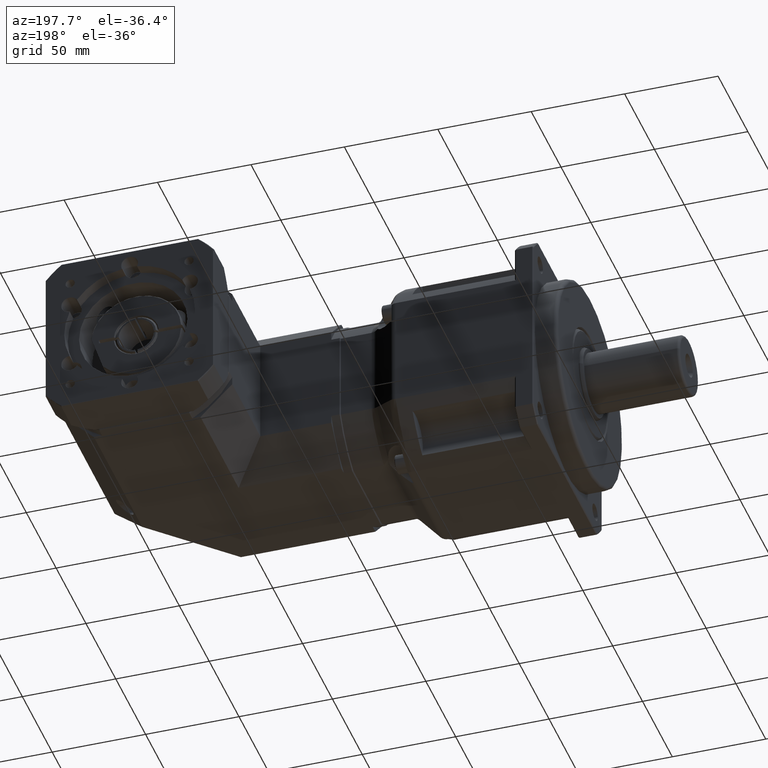
[diagram: clean part render]
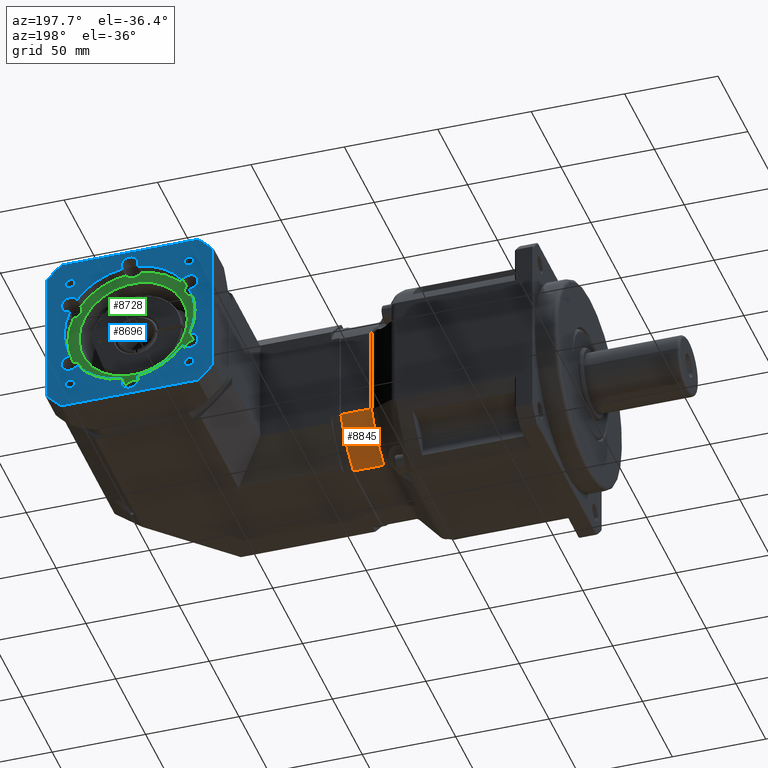
[diagram: same view with three faces highlighted in distinct colors, each labeled with its STEP entity id]
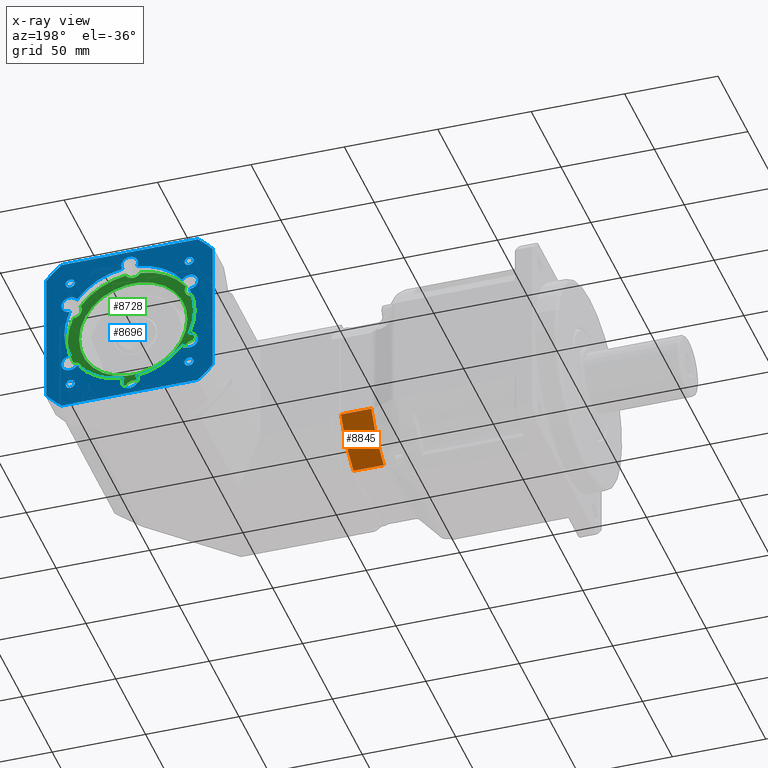
[diagram: x-ray of the same camera — body ghosted, the three highlighted faces saturated]
A machine part, auxiliary view with three faces highlighted in distinct colors.
The next image is the same camera in x-ray (body ghosted, the three faces saturated) — at least one of them is partly hidden behind the body in this view.
Their STEP definitions:

[orange] entity #8845 — the highlighted cylindrical surface (partial cylindrical patch) has radius 51 mm, axis along (-1, -0, 0).
#146=B_SPLINE_CURVE_WITH_KNOTS('',3,(#15030,#15031,#15032,#15033,#15034),
 .UNSPECIFIED.,.F.,.F.,(4,1,4),(0.00398451427106212,1.89532849861247,3.31286002576613),
 .UNSPECIFIED.);
#513=LINE('',#14957,#976);
#519=LINE('',#15024,#982);
#976=VECTOR('',#11473,16.2613812416727);
#982=VECTOR('',#11487,16.2613812416727);
#2119=CYLINDRICAL_SURFACE('',#9712,51.);
#2487=FACE_OUTER_BOUND('',#3211,.T.);
#3211=EDGE_LOOP('',(#7164,#7165,#7166,#7167));
#3839=CIRCLE('',#9713,51.);
#4455=VERTEX_POINT('',#14951);
#4456=VERTEX_POINT('',#14956);
#4463=VERTEX_POINT('',#15021);
#4464=VERTEX_POINT('',#15023);
#5437=EDGE_CURVE('',#4455,#4456,#513,.T.);
#5449=EDGE_CURVE('',#4463,#4464,#519,.T.);
#5451=EDGE_CURVE('',#4464,#4455,#146,.T.);
#5452=EDGE_CURVE('',#4456,#4463,#3839,.T.);
#7164=ORIENTED_EDGE('',*,*,#5451,.F.);
#7165=ORIENTED_EDGE('',*,*,#5449,.F.);
#7166=ORIENTED_EDGE('',*,*,#5452,.F.);
#7167=ORIENTED_EDGE('',*,*,#5437,.F.);
#8845=ADVANCED_FACE('',(#2487),#2119,.T.);
#9712=AXIS2_PLACEMENT_3D('',#15029,#11488,#11489);
#9713=AXIS2_PLACEMENT_3D('',#15035,#11490,#11491);
#11473=DIRECTION('',(1.,7.30465753510197E-16,-7.28688222839997E-17));
#11487=DIRECTION('',(-1.,-7.30465753510197E-16,7.28688222839997E-17));
#11488=DIRECTION('center_axis',(-1.,-7.30465753510197E-16,7.28688222839997E-17));
#11489=DIRECTION('ref_axis',(7.28688222840003E-17,-8.02309607639273E-16,
1.));
#11490=DIRECTION('center_axis',(1.,7.30465753510197E-16,-7.28688222839997E-17));
#11491=DIRECTION('ref_axis',(7.28688222840003E-17,-8.02309607639273E-16,
1.));
#14951=CARTESIAN_POINT('',(-28.5759447273113,60.0608220023816,33.375721489125));
#14956=CARTESIAN_POINT('',(-12.3145634856386,60.0608220023816,33.375721489125));
#14957=CARTESIAN_POINT('',(-12.3145634856386,60.0608220023816,33.375721489125));
#15021=CARTESIAN_POINT('',(-12.3145634856386,81.0608220023815,54.375721489125));
#15023=CARTESIAN_POINT('',(-28.5759447273113,81.0608220023815,54.375721489125));
#15024=CARTESIAN_POINT('',(-12.3145634856386,81.0608220023815,54.375721489125));
#15029=CARTESIAN_POINT('Origin',(-12.3145634856386,36.0608220023815,78.375721489125));
#15030=CARTESIAN_POINT('Ctrl Pts',(-28.5759447273113,81.0608218959225,54.3757215634909));
#15031=CARTESIAN_POINT('Ctrl Pts',(-28.5758925062007,78.3588679438631,49.3096444238348));
#15032=CARTESIAN_POINT('Ctrl Pts',(-28.5758533674329,72.1211196478526,41.2542845228089));
#15033=CARTESIAN_POINT('Ctrl Pts',(-28.5759055882676,63.8577944991885,35.4007868925973));
#15034=CARTESIAN_POINT('Ctrl Pts',(-28.5759447273113,60.0608219840682,33.3757215355544));
#15035=CARTESIAN_POINT('Origin',(-12.3145634856386,36.0608220023815,78.375721489125));

[blue] entity #8696 — the highlighted planar face has unit normal (0, 1, -0).
#398=LINE('',#13290,#861);
#400=LINE('',#13343,#863);
#402=LINE('',#13381,#865);
#405=LINE('',#13421,#868);
#861=VECTOR('',#10746,72.8285658241325);
#863=VECTOR('',#10756,72.8285658241325);
#865=VECTOR('',#10766,72.8285658241325);
#868=VECTOR('',#10777,72.8285658241325);
#1857=FACE_BOUND('',#3001,.T.);
#1858=FACE_BOUND('',#3002,.T.);
#1859=FACE_BOUND('',#3003,.T.);
#1860=FACE_BOUND('',#3004,.T.);
#1861=FACE_BOUND('',#3005,.T.);
#2338=FACE_OUTER_BOUND('',#3000,.T.);
#3000=EDGE_LOOP('',(#6454,#6455,#6456,#6457,#6458,#6459,#6460,#6461));
#3001=EDGE_LOOP('',(#6462,#6463,#6464,#6465,#6466,#6467,#6468,#6469,#6470,
#6471,#6472,#6473));
#3002=EDGE_LOOP('',(#6474));
#3003=EDGE_LOOP('',(#6475));
#3004=EDGE_LOOP('',(#6476));
#3005=EDGE_LOOP('',(#6477));
#3691=CIRCLE('',#9403,57.5);
#3693=CIRCLE('',#9407,57.5);
#3696=CIRCLE('',#9412,57.5);
#3698=CIRCLE('',#9416,57.5);
#3705=CIRCLE('',#9428,4.5);
#3706=CIRCLE('',#9429,35.);
#3707=CIRCLE('',#9430,4.5);
#3708=CIRCLE('',#9431,35.);
#3709=CIRCLE('',#9432,4.5);
#3710=CIRCLE('',#9433,35.);
#3711=CIRCLE('',#9434,4.5);
#3712=CIRCLE('',#9435,35.);
#3713=CIRCLE('',#9436,4.5);
#3714=CIRCLE('',#9437,35.);
#3715=CIRCLE('',#9438,4.5);
#3716=CIRCLE('',#9439,35.);
#3717=CIRCLE('',#9440,2.4585);
#3718=CIRCLE('',#9441,2.4585);
#3719=CIRCLE('',#9442,2.4585);
#3720=CIRCLE('',#9443,2.4585);
#4194=VERTEX_POINT('',#13288);
#4195=VERTEX_POINT('',#13289);
#4198=VERTEX_POINT('',#13323);
#4200=VERTEX_POINT('',#13342);
#4202=VERTEX_POINT('',#13361);
#4204=VERTEX_POINT('',#13380);
#4207=VERTEX_POINT('',#13401);
#4209=VERTEX_POINT('',#13420);
#4219=VERTEX_POINT('',#13467);
#4220=VERTEX_POINT('',#13468);
#4221=VERTEX_POINT('',#13470);
#4222=VERTEX_POINT('',#13472);
#4223=VERTEX_POINT('',#13474);
#4224=VERTEX_POINT('',#13476);
#4225=VERTEX_POINT('',#13478);
#4226=VERTEX_POINT('',#13480);
#4227=VERTEX_POINT('',#13482);
#4228=VERTEX_POINT('',#13484);
#4229=VERTEX_POINT('',#13486);
#4230=VERTEX_POINT('',#13488);
#4231=VERTEX_POINT('',#13491);
#4232=VERTEX_POINT('',#13493);
#4233=VERTEX_POINT('',#13495);
#4234=VERTEX_POINT('',#13497);
#5054=EDGE_CURVE('',#4194,#4195,#398,.T.);
#5058=EDGE_CURVE('',#4195,#4198,#3691,.T.);
#5061=EDGE_CURVE('',#4198,#4200,#400,.T.);
#5064=EDGE_CURVE('',#4200,#4202,#3693,.T.);
#5067=EDGE_CURVE('',#4202,#4204,#402,.T.);
#5071=EDGE_CURVE('',#4204,#4207,#3696,.T.);
#5074=EDGE_CURVE('',#4207,#4209,#405,.T.);
#5077=EDGE_CURVE('',#4209,#4194,#3698,.T.);
#5092=EDGE_CURVE('',#4219,#4220,#3705,.T.);
#5093=EDGE_CURVE('',#4220,#4221,#3706,.T.);
#5094=EDGE_CURVE('',#4221,#4222,#3707,.T.);
#5095=EDGE_CURVE('',#4222,#4223,#3708,.T.);
#5096=EDGE_CURVE('',#4223,#4224,#3709,.T.);
#5097=EDGE_CURVE('',#4224,#4225,#3710,.T.);
#5098=EDGE_CURVE('',#4225,#4226,#3711,.T.);
#5099=EDGE_CURVE('',#4226,#4227,#3712,.T.);
#5100=EDGE_CURVE('',#4227,#4228,#3713,.T.);
#5101=EDGE_CURVE('',#4228,#4229,#3714,.T.);
#5102=EDGE_CURVE('',#4229,#4230,#3715,.T.);
#5103=EDGE_CURVE('',#4230,#4219,#3716,.T.);
#5104=EDGE_CURVE('',#4231,#4231,#3717,.T.);
#5105=EDGE_CURVE('',#4232,#4232,#3718,.T.);
#5106=EDGE_CURVE('',#4233,#4233,#3719,.T.);
#5107=EDGE_CURVE('',#4234,#4234,#3720,.T.);
#6454=ORIENTED_EDGE('',*,*,#5054,.F.);
#6455=ORIENTED_EDGE('',*,*,#5077,.F.);
#6456=ORIENTED_EDGE('',*,*,#5074,.F.);
#6457=ORIENTED_EDGE('',*,*,#5071,.F.);
#6458=ORIENTED_EDGE('',*,*,#5067,.F.);
#6459=ORIENTED_EDGE('',*,*,#5064,.F.);
#6460=ORIENTED_EDGE('',*,*,#5061,.F.);
#6461=ORIENTED_EDGE('',*,*,#5058,.F.);
#6462=ORIENTED_EDGE('',*,*,#5092,.T.);
#6463=ORIENTED_EDGE('',*,*,#5093,.T.);
#6464=ORIENTED_EDGE('',*,*,#5094,.T.);
#6465=ORIENTED_EDGE('',*,*,#5095,.T.);
#6466=ORIENTED_EDGE('',*,*,#5096,.T.);
#6467=ORIENTED_EDGE('',*,*,#5097,.T.);
#6468=ORIENTED_EDGE('',*,*,#5098,.T.);
#6469=ORIENTED_EDGE('',*,*,#5099,.T.);
#6470=ORIENTED_EDGE('',*,*,#5100,.T.);
#6471=ORIENTED_EDGE('',*,*,#5101,.T.);
#6472=ORIENTED_EDGE('',*,*,#5102,.T.);
#6473=ORIENTED_EDGE('',*,*,#5103,.T.);
#6474=ORIENTED_EDGE('',*,*,#5104,.T.);
#6475=ORIENTED_EDGE('',*,*,#5105,.T.);
#6476=ORIENTED_EDGE('',*,*,#5106,.T.);
#6477=ORIENTED_EDGE('',*,*,#5107,.T.);
#8328=PLANE('',#9427);
#8696=ADVANCED_FACE('',(#2338,#1857,#1858,#1859,#1860,#1861),#8328,.T.);
#9403=AXIS2_PLACEMENT_3D('',#13324,#10750,#10751);
#9407=AXIS2_PLACEMENT_3D('',#13362,#10760,#10761);
#9412=AXIS2_PLACEMENT_3D('',#13402,#10772,#10773);
#9416=AXIS2_PLACEMENT_3D('',#13438,#10782,#10783);
#9427=AXIS2_PLACEMENT_3D('',#13466,#10812,#10813);
#9428=AXIS2_PLACEMENT_3D('',#13469,#10814,#10815);
#9429=AXIS2_PLACEMENT_3D('',#13471,#10816,#10817);
#9430=AXIS2_PLACEMENT_3D('',#13473,#10818,#10819);
#9431=AXIS2_PLACEMENT_3D('',#13475,#10820,#10821);
#9432=AXIS2_PLACEMENT_3D('',#13477,#10822,#10823);
#9433=AXIS2_PLACEMENT_3D('',#13479,#10824,#10825);
#9434=AXIS2_PLACEMENT_3D('',#13481,#10826,#10827);
#9435=AXIS2_PLACEMENT_3D('',#13483,#10828,#10829);
#9436=AXIS2_PLACEMENT_3D('',#13485,#10830,#10831);
#9437=AXIS2_PLACEMENT_3D('',#13487,#10832,#10833);
#9438=AXIS2_PLACEMENT_3D('',#13489,#10834,#10835);
#9439=AXIS2_PLACEMENT_3D('',#13490,#10836,#10837);
#9440=AXIS2_PLACEMENT_3D('',#13492,#10838,#10839);
#9441=AXIS2_PLACEMENT_3D('',#13494,#10840,#10841);
#9442=AXIS2_PLACEMENT_3D('',#13496,#10842,#10843);
#9443=AXIS2_PLACEMENT_3D('',#13498,#10844,#10845);
#10746=DIRECTION('',(-1.,4.11158999029253E-16,-2.09246200613381E-15));
#10750=DIRECTION('center_axis',(-4.11158999029255E-16,-1.,9.48319852898742E-16));
#10751=DIRECTION('ref_axis',(-0.707106781186549,9.61296715077988E-16,0.707106781186546));
#10756=DIRECTION('',(2.09246200613381E-15,-9.48319852898743E-16,-1.));
#10760=DIRECTION('center_axis',(-4.11158999029255E-16,-1.,9.48319852898742E-16));
#10761=DIRECTION('ref_axis',(-0.707106781186546,-3.79830082359073E-16,-0.707106781186549));
#10766=DIRECTION('',(1.,-4.11158999029253E-16,2.28983498828939E-15));
#10772=DIRECTION('center_axis',(-4.11158999029255E-16,-1.,9.48319852898742E-16));
#10773=DIRECTION('ref_axis',(0.707106781186549,-9.61296715077989E-16,-0.707106781186546));
#10777=DIRECTION('',(-2.09246200613381E-15,9.48319852898743E-16,1.));
#10782=DIRECTION('center_axis',(-4.11158999029255E-16,-1.,9.48319852898742E-16));
#10783=DIRECTION('ref_axis',(0.707106781186546,3.79830082359073E-16,0.707106781186549));
#10812=DIRECTION('center_axis',(4.11158999029255E-16,1.,-9.48319852898742E-16));
#10813=DIRECTION('ref_axis',(-2.8421709430404E-15,0.,1.));
#10814=DIRECTION('center_axis',(-4.11158999029255E-16,-1.,9.48319852898742E-16));
#10815=DIRECTION('ref_axis',(0.866025403784438,1.18085788295456E-16,0.500000000000001));
#10816=DIRECTION('center_axis',(-4.11158999029255E-16,-1.,9.48319852898742E-16));
#10817=DIRECTION('ref_axis',(1.,-4.11158999029253E-16,2.28983498828939E-15));
#10818=DIRECTION('center_axis',(-4.11158999029255E-16,-1.,9.48319852898742E-16));
#10819=DIRECTION('ref_axis',(-2.28983498828939E-15,9.48319852898743E-16,
1.));
#10820=DIRECTION('center_axis',(-4.11158999029255E-16,-1.,9.48319852898742E-16));
#10821=DIRECTION('ref_axis',(1.,-4.11158999029253E-16,2.28983498828939E-15));
#10822=DIRECTION('center_axis',(-4.11158999029255E-16,-1.,9.48319852898742E-16));
#10823=DIRECTION('ref_axis',(-0.86602540378444,8.30234064603286E-16,0.499999999999998));
#10824=DIRECTION('center_axis',(-4.11158999029255E-16,-1.,9.48319852898742E-16));
#10825=DIRECTION('ref_axis',(1.,-4.11158999029253E-16,2.28983498828939E-15));
#10826=DIRECTION('center_axis',(-4.11158999029255E-16,-1.,9.48319852898742E-16));
#10827=DIRECTION('ref_axis',(-0.866025403784438,-1.18085788295457E-16,-0.500000000000002));
#10828=DIRECTION('center_axis',(-4.11158999029255E-16,-1.,9.48319852898742E-16));
#10829=DIRECTION('ref_axis',(1.,-4.11158999029253E-16,2.28983498828939E-15));
#10830=DIRECTION('center_axis',(-4.11158999029255E-16,-1.,9.48319852898742E-16));
#10831=DIRECTION('ref_axis',(2.10479781751853E-15,-9.48319852898743E-16,
-1.));
#10832=DIRECTION('center_axis',(-4.11158999029255E-16,-1.,9.48319852898742E-16));
#10833=DIRECTION('ref_axis',(1.,-4.11158999029253E-16,2.28983498828939E-15));
#10834=DIRECTION('center_axis',(-4.11158999029255E-16,-1.,9.48319852898742E-16));
#10835=DIRECTION('ref_axis',(0.866025403784439,-8.30234064603286E-16,-0.499999999999998));
#10836=DIRECTION('center_axis',(-4.11158999029255E-16,-1.,9.48319852898742E-16));
#10837=DIRECTION('ref_axis',(1.,-4.11158999029253E-16,2.28983498828939E-15));
#10838=DIRECTION('center_axis',(-4.11158999029255E-16,-1.,9.48319852898742E-16));
#10839=DIRECTION('ref_axis',(-2.28983498828939E-15,9.48319852898743E-16,
1.));
#10840=DIRECTION('center_axis',(-4.11158999029255E-16,-1.,9.48319852898742E-16));
#10841=DIRECTION('ref_axis',(-1.,4.11158999029253E-16,-2.22860264833202E-15));
#10842=DIRECTION('center_axis',(-4.11158999029255E-16,-1.,9.48319852898742E-16));
#10843=DIRECTION('ref_axis',(2.16737030837465E-15,-9.48319852898743E-16,
-1.));
#10844=DIRECTION('center_axis',(-4.11158999029255E-16,-1.,9.48319852898742E-16));
#10845=DIRECTION('ref_axis',(1.,-4.11158999029253E-16,2.10613796841729E-15));
#13288=CARTESIAN_POINT('',(112.599719426457,158.060822002382,122.875721489125));
#13289=CARTESIAN_POINT('',(39.771153602324,158.060822002382,122.875721489125));
#13290=CARTESIAN_POINT('',(98.6854365143903,158.060822002382,122.875721489125));
#13323=CARTESIAN_POINT('',(31.6854365143903,158.060822002382,114.790004401191));
#13324=CARTESIAN_POINT('Origin',(76.1854365143904,158.060822002382,78.3757214891251));
#13342=CARTESIAN_POINT('',(31.6854365143905,158.060822002382,41.9614385770588));
#13343=CARTESIAN_POINT('',(31.6854365143903,158.060822002382,100.875721489125));
#13361=CARTESIAN_POINT('',(39.7711536023243,158.060822002381,33.875721489125));
#13362=CARTESIAN_POINT('Origin',(76.1854365143904,158.060822002382,78.3757214891251));
#13380=CARTESIAN_POINT('',(112.599719426457,158.060822002381,33.8757214891252));
#13381=CARTESIAN_POINT('',(53.6854365143905,158.060822002381,33.875721489125));
#13401=CARTESIAN_POINT('',(120.68543651439,158.060822002381,41.9614385770589));
#13402=CARTESIAN_POINT('Origin',(76.1854365143904,158.060822002382,78.3757214891251));
#13420=CARTESIAN_POINT('',(120.68543651439,158.060822002382,114.790004401191));
#13421=CARTESIAN_POINT('',(120.68543651439,158.060822002381,55.8757214891252));
#13438=CARTESIAN_POINT('Origin',(76.1854365143904,158.060822002382,78.3757214891251));
#13466=CARTESIAN_POINT('Origin',(76.1854365143904,158.060822002382,78.3757214891251));
#13467=CARTESIAN_POINT('',(108.263406870783,158.060822002382,92.3758578389765));
#13468=CARTESIAN_POINT('',(104.348895428004,158.060822002382,99.1559905446792));
#13469=CARTESIAN_POINT('Origin',(108.228376454415,158.060822002382,96.8757214891252));
#13470=CARTESIAN_POINT('',(80.0999479571692,158.060822002382,113.156126894531));
#13471=CARTESIAN_POINT('Origin',(76.1854365143904,158.060822002382,78.3757214891251));
#13472=CARTESIAN_POINT('',(72.2709250716115,158.060822002382,113.15612689453));
#13473=CARTESIAN_POINT('Origin',(76.1854365143903,158.060822002382,115.375721489125));
#13474=CARTESIAN_POINT('',(48.0219776007771,158.060822002382,99.1559905446791));
#13475=CARTESIAN_POINT('Origin',(76.1854365143904,158.060822002382,78.3757214891251));
#13476=CARTESIAN_POINT('',(44.1074661579983,158.060822002382,92.3758578389764));
#13477=CARTESIAN_POINT('Origin',(44.1424965743661,158.060822002382,96.875721489125));
#13478=CARTESIAN_POINT('',(44.1074661579983,158.060822002382,64.3755851392737));
#13479=CARTESIAN_POINT('Origin',(76.1854365143904,158.060822002382,78.3757214891251));
#13480=CARTESIAN_POINT('',(48.0219776007772,158.060822002382,57.595452433571));
#13481=CARTESIAN_POINT('Origin',(44.1424965743662,158.060822002382,59.875721489125));
#13482=CARTESIAN_POINT('',(72.2709250716116,158.060822002381,43.5953160837197));
#13483=CARTESIAN_POINT('Origin',(76.1854365143904,158.060822002382,78.3757214891251));
#13484=CARTESIAN_POINT('',(80.0999479571693,158.060822002381,43.5953160837197));
#13485=CARTESIAN_POINT('Origin',(76.1854365143905,158.060822002381,41.3757214891251));
#13486=CARTESIAN_POINT('',(104.348895428004,158.060822002381,57.5954524335711));
#13487=CARTESIAN_POINT('Origin',(76.1854365143904,158.060822002382,78.3757214891251));
#13488=CARTESIAN_POINT('',(108.263406870783,158.060822002382,64.3755851392738));
#13489=CARTESIAN_POINT('Origin',(108.228376454415,158.060822002381,59.8757214891251));
#13490=CARTESIAN_POINT('Origin',(76.1854365143904,158.060822002382,78.3757214891251));
#13491=CARTESIAN_POINT('',(108.005241667785,158.060822002382,112.65402664252));
#13492=CARTESIAN_POINT('Origin',(108.005241667785,158.060822002382,110.19552664252));
#13493=CARTESIAN_POINT('',(41.9071313609957,158.060822002382,110.19552664252));
#13494=CARTESIAN_POINT('Origin',(44.3656313609957,158.060822002382,110.19552664252));
#13495=CARTESIAN_POINT('',(44.3656313609958,158.060822002382,44.0974163357304));
#13496=CARTESIAN_POINT('Origin',(44.3656313609958,158.060822002382,46.5559163357304));
#13497=CARTESIAN_POINT('',(110.463741667785,158.060822002381,46.5559163357305));
#13498=CARTESIAN_POINT('Origin',(108.005241667785,158.060822002381,46.5559163357305));

[green] entity #8728 — the highlighted planar face has unit normal (-0, -1, 0).
#1878=FACE_BOUND('',#3054,.T.);
#2370=FACE_OUTER_BOUND('',#3053,.T.);
#3053=EDGE_LOOP('',(#6597,#6598,#6599,#6600,#6601,#6602,#6603,#6604,#6605,
#6606,#6607,#6608));
#3054=EDGE_LOOP('',(#6609));
#3736=CIRCLE('',#9482,4.5);
#3738=CIRCLE('',#9486,4.5);
#3740=CIRCLE('',#9490,4.5);
#3743=CIRCLE('',#9495,4.5);
#3745=CIRCLE('',#9499,4.5);
#3746=CIRCLE('',#9501,35.);
#3747=CIRCLE('',#9502,35.);
#3748=CIRCLE('',#9503,35.);
#3749=CIRCLE('',#9504,35.);
#3750=CIRCLE('',#9505,35.);
#3751=CIRCLE('',#9506,4.5);
#3752=CIRCLE('',#9507,35.);
#3753=CIRCLE('',#9508,29.);
#4257=VERTEX_POINT('',#13722);
#4258=VERTEX_POINT('',#13724);
#4260=VERTEX_POINT('',#13731);
#4261=VERTEX_POINT('',#13733);
#4263=VERTEX_POINT('',#13740);
#4264=VERTEX_POINT('',#13742);
#4267=VERTEX_POINT('',#13751);
#4268=VERTEX_POINT('',#13753);
#4270=VERTEX_POINT('',#13760);
#4271=VERTEX_POINT('',#13762);
#4272=VERTEX_POINT('',#13770);
#4273=VERTEX_POINT('',#13772);
#4274=VERTEX_POINT('',#13775);
#5147=EDGE_CURVE('',#4258,#4257,#3736,.T.);
#5151=EDGE_CURVE('',#4261,#4260,#3738,.T.);
#5155=EDGE_CURVE('',#4264,#4263,#3740,.T.);
#5160=EDGE_CURVE('',#4268,#4267,#3743,.T.);
#5164=EDGE_CURVE('',#4271,#4270,#3745,.T.);
#5166=EDGE_CURVE('',#4261,#4257,#3746,.T.);
#5167=EDGE_CURVE('',#4264,#4260,#3747,.T.);
#5168=EDGE_CURVE('',#4268,#4263,#3748,.T.);
#5169=EDGE_CURVE('',#4271,#4267,#3749,.T.);
#5170=EDGE_CURVE('',#4272,#4270,#3750,.T.);
#5171=EDGE_CURVE('',#4272,#4273,#3751,.T.);
#5172=EDGE_CURVE('',#4258,#4273,#3752,.T.);
#5173=EDGE_CURVE('',#4274,#4274,#3753,.T.);
#6597=ORIENTED_EDGE('',*,*,#5147,.T.);
#6598=ORIENTED_EDGE('',*,*,#5166,.F.);
#6599=ORIENTED_EDGE('',*,*,#5151,.T.);
#6600=ORIENTED_EDGE('',*,*,#5167,.F.);
#6601=ORIENTED_EDGE('',*,*,#5155,.T.);
#6602=ORIENTED_EDGE('',*,*,#5168,.F.);
#6603=ORIENTED_EDGE('',*,*,#5160,.T.);
#6604=ORIENTED_EDGE('',*,*,#5169,.F.);
#6605=ORIENTED_EDGE('',*,*,#5164,.T.);
#6606=ORIENTED_EDGE('',*,*,#5170,.F.);
#6607=ORIENTED_EDGE('',*,*,#5171,.T.);
#6608=ORIENTED_EDGE('',*,*,#5172,.F.);
#6609=ORIENTED_EDGE('',*,*,#5173,.T.);
#8336=PLANE('',#9500);
#8728=ADVANCED_FACE('',(#2370,#1878),#8336,.F.);
#9482=AXIS2_PLACEMENT_3D('',#13725,#10930,#10931);
#9486=AXIS2_PLACEMENT_3D('',#13734,#10940,#10941);
#9490=AXIS2_PLACEMENT_3D('',#13743,#10950,#10951);
#9495=AXIS2_PLACEMENT_3D('',#13754,#10962,#10963);
#9499=AXIS2_PLACEMENT_3D('',#13763,#10972,#10973);
#9500=AXIS2_PLACEMENT_3D('',#13765,#10975,#10976);
#9501=AXIS2_PLACEMENT_3D('',#13766,#10977,#10978);
#9502=AXIS2_PLACEMENT_3D('',#13767,#10979,#10980);
#9503=AXIS2_PLACEMENT_3D('',#13768,#10981,#10982);
#9504=AXIS2_PLACEMENT_3D('',#13769,#10983,#10984);
#9505=AXIS2_PLACEMENT_3D('',#13771,#10985,#10986);
#9506=AXIS2_PLACEMENT_3D('',#13773,#10987,#10988);
#9507=AXIS2_PLACEMENT_3D('',#13774,#10989,#10990);
#9508=AXIS2_PLACEMENT_3D('',#13776,#10991,#10992);
#10930=DIRECTION('center_axis',(-4.11158999029255E-16,-1.,9.48319852898742E-16));
#10931=DIRECTION('ref_axis',(0.866025403784438,1.18085788295456E-16,0.500000000000001));
#10940=DIRECTION('center_axis',(-4.11158999029255E-16,-1.,9.48319852898742E-16));
#10941=DIRECTION('ref_axis',(0.866025403784439,-8.30234064603286E-16,-0.499999999999998));
#10950=DIRECTION('center_axis',(-4.11158999029255E-16,-1.,9.48319852898742E-16));
#10951=DIRECTION('ref_axis',(2.10479781751853E-15,-9.48319852898743E-16,
-1.));
#10962=DIRECTION('center_axis',(-4.11158999029255E-16,-1.,9.48319852898742E-16));
#10963=DIRECTION('ref_axis',(-0.866025403784438,-1.18085788295457E-16,-0.500000000000002));
#10972=DIRECTION('center_axis',(-4.11158999029255E-16,-1.,9.48319852898742E-16));
#10973=DIRECTION('ref_axis',(-0.86602540378444,8.30234064603286E-16,0.499999999999998));
#10975=DIRECTION('center_axis',(-4.11158999029255E-16,-1.,9.48319852898742E-16));
#10976=DIRECTION('ref_axis',(2.8421709430404E-15,0.,-1.));
#10977=DIRECTION('center_axis',(-4.11158999029255E-16,-1.,9.48319852898742E-16));
#10978=DIRECTION('ref_axis',(2.28983498828939E-15,-9.48319852898743E-16,
-1.));
#10979=DIRECTION('center_axis',(-4.11158999029255E-16,-1.,9.48319852898742E-16));
#10980=DIRECTION('ref_axis',(2.28983498828939E-15,-9.48319852898743E-16,
-1.));
#10981=DIRECTION('center_axis',(-4.11158999029255E-16,-1.,9.48319852898742E-16));
#10982=DIRECTION('ref_axis',(2.28983498828939E-15,-9.48319852898743E-16,
-1.));
#10983=DIRECTION('center_axis',(-4.11158999029255E-16,-1.,9.48319852898742E-16));
#10984=DIRECTION('ref_axis',(2.28983498828939E-15,-9.48319852898743E-16,
-1.));
#10985=DIRECTION('center_axis',(-4.11158999029255E-16,-1.,9.48319852898742E-16));
#10986=DIRECTION('ref_axis',(2.28983498828939E-15,-9.48319852898743E-16,
-1.));
#10987=DIRECTION('center_axis',(-4.11158999029255E-16,-1.,9.48319852898742E-16));
#10988=DIRECTION('ref_axis',(-2.28983498828939E-15,9.48319852898743E-16,
1.));
#10989=DIRECTION('center_axis',(-4.11158999029255E-16,-1.,9.48319852898742E-16));
#10990=DIRECTION('ref_axis',(2.28983498828939E-15,-9.48319852898743E-16,
-1.));
#10991=DIRECTION('center_axis',(-4.11158999029255E-16,-1.,9.48319852898742E-16));
#10992=DIRECTION('ref_axis',(2.28983498828939E-15,-9.48319852898743E-16,
-1.));
#13722=CARTESIAN_POINT('',(108.263406870782,152.060822002382,92.3758578389765));
#13724=CARTESIAN_POINT('',(104.348895428004,152.060822002382,99.1559905446792));
#13725=CARTESIAN_POINT('Origin',(108.228376454415,152.060822002382,96.8757214891252));
#13731=CARTESIAN_POINT('',(104.348895428004,152.060822002381,57.5954524335711));
#13733=CARTESIAN_POINT('',(108.263406870783,152.060822002381,64.3755851392738));
#13734=CARTESIAN_POINT('Origin',(108.228376454415,152.060822002381,59.8757214891252));
#13740=CARTESIAN_POINT('',(72.2709250716117,152.060822002381,43.5953160837197));
#13742=CARTESIAN_POINT('',(80.0999479571693,152.060822002381,43.5953160837197));
#13743=CARTESIAN_POINT('Origin',(76.1854365143905,152.060822002381,41.3757214891251));
#13751=CARTESIAN_POINT('',(44.1074661579983,152.060822002382,64.3755851392737));
#13753=CARTESIAN_POINT('',(48.0219776007772,152.060822002382,57.595452433571));
#13754=CARTESIAN_POINT('Origin',(44.1424965743662,152.060822002382,59.875721489125));
#13760=CARTESIAN_POINT('',(48.0219776007771,152.060822002382,99.1559905446791));
#13762=CARTESIAN_POINT('',(44.1074661579983,152.060822002382,92.3758578389764));
#13763=CARTESIAN_POINT('Origin',(44.1424965743661,152.060822002382,96.8757214891251));
#13765=CARTESIAN_POINT('Origin',(105.18543651439,152.060822002382,78.3757214891252));
#13766=CARTESIAN_POINT('Origin',(76.1854365143904,152.060822002382,78.3757214891251));
#13767=CARTESIAN_POINT('Origin',(76.1854365143904,152.060822002382,78.3757214891251));
#13768=CARTESIAN_POINT('Origin',(76.1854365143904,152.060822002382,78.3757214891251));
#13769=CARTESIAN_POINT('Origin',(76.1854365143904,152.060822002382,78.3757214891251));
#13770=CARTESIAN_POINT('',(72.2709250716115,152.060822002382,113.156126894531));
#13771=CARTESIAN_POINT('Origin',(76.1854365143904,152.060822002382,78.3757214891251));
#13772=CARTESIAN_POINT('',(80.0999479571691,152.060822002382,113.156126894531));
#13773=CARTESIAN_POINT('Origin',(76.1854365143903,152.060822002382,115.375721489125));
#13774=CARTESIAN_POINT('Origin',(76.1854365143904,152.060822002382,78.3757214891251));
#13775=CARTESIAN_POINT('',(105.18543651439,152.060822002382,78.3757214891252));
#13776=CARTESIAN_POINT('Origin',(76.1854365143904,152.060822002382,78.3757214891251));